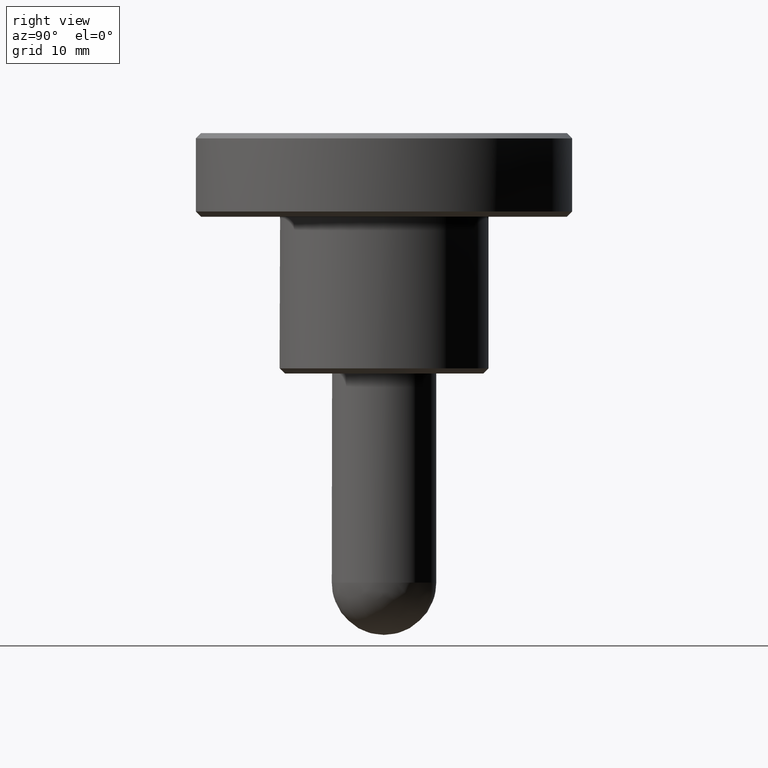
[diagram: clean part render]
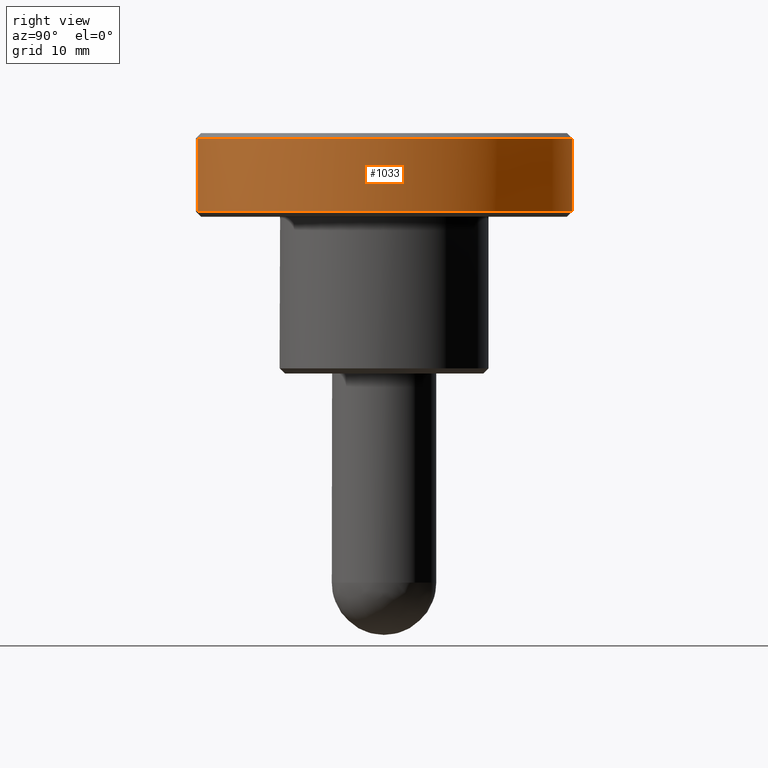
[diagram: same view with one face highlighted and labeled with its STEP entity id]
A machine part, right view. The second image highlights one B-rep face of the part: STEP entity #1033.
In plain terms, the highlighted face is a freeform B-spline surface patch.
Its self-contained STEP definition (entity closure, byte-faithful):
#150=CARTESIAN_POINT('',(2.234292461750493,-17.860793296917940,22.499999999999961));
#151=VERTEX_POINT('',#150);
#167=CARTESIAN_POINT('',(18.0,0.0,22.500000000000000));
#168=VERTEX_POINT('',#167);
#169=CARTESIAN_POINT('',(18.0,0.0,22.500000000000000));
#170=CARTESIAN_POINT('',(17.999999999999996,-15.888585180446192,22.499999999999996));
#171=CARTESIAN_POINT('',(2.234292461750493,-17.860793296917937,22.499999999999968));
#179=(BOUNDED_CURVE()B_SPLINE_CURVE(2,(#169,#170,#171),.UNSPECIFIED.,.F.,.U.)B_SPLINE_CURVE_WITH_KNOTS((3,3),(0.500000000000000,0.728526180329740),.UNSPECIFIED.)CURVE()GEOMETRIC_REPRESENTATION_ITEM()RATIONAL_B_SPLINE_CURVE((1.0,0.732264925840316,0.954005642384730))REPRESENTATION_ITEM(''));
#180=EDGE_CURVE('',#168,#151,#179,.T.);
#182=CARTESIAN_POINT('',(-0.157062411385727,17.999314748031320,22.500000000000011));
#183=VERTEX_POINT('',#182);
#184=CARTESIAN_POINT('',(-0.157062411385727,17.999314748031320,22.500000000000014));
#185=CARTESIAN_POINT('',(-0.078532700545314,17.999999999999996,22.500000000000004));
#186=CARTESIAN_POINT('',(0.0,18.0,22.500000000000000));
#187=CARTESIAN_POINT('',(18.000000000000007,18.000000000000007,22.500000000000004));
#188=CARTESIAN_POINT('',(18.0,0.0,22.500000000000000));
#196=(BOUNDED_CURVE()B_SPLINE_CURVE(2,(#184,#185,#186,#187,#188),.UNSPECIFIED.,.F.,.U.)B_SPLINE_CURVE_WITH_KNOTS((3,2,3),(0.248460254683442,0.250000000000000,0.500000000000000),.UNSPECIFIED.)CURVE()GEOMETRIC_REPRESENTATION_ITEM()RATIONAL_B_SPLINE_CURVE((0.996414372971010,0.998196076152321,1.0,0.707106781186547,1.0))REPRESENTATION_ITEM(''));
#197=EDGE_CURVE('',#183,#168,#196,.T.);
#361=CARTESIAN_POINT('',(-0.157061939083980,17.999314752152220,15.500000000000000));
#362=VERTEX_POINT('',#361);
#376=CARTESIAN_POINT('',(18.0,0.0,15.500000000000000));
#377=VERTEX_POINT('',#376);
#378=CARTESIAN_POINT('',(18.0,0.0,15.500000000000000));
#379=CARTESIAN_POINT('',(18.000000000000007,18.000000000000007,15.500000000000005));
#380=CARTESIAN_POINT('',(0.0,18.0,15.500000000000000));
#381=CARTESIAN_POINT('',(-0.078532464380953,18.000000000000004,15.500000000000002));
#382=CARTESIAN_POINT('',(-0.157061939083980,17.999314752152223,15.500000000000000));
#390=(BOUNDED_CURVE()B_SPLINE_CURVE(2,(#378,#379,#380,#381,#382),.UNSPECIFIED.,.F.,.U.)B_SPLINE_CURVE_WITH_KNOTS((3,2,3),(0.500000000000000,0.750000000000000,0.751539740694573),.UNSPECIFIED.)CURVE()GEOMETRIC_REPRESENTATION_ITEM()RATIONAL_B_SPLINE_CURVE((1.0,0.707106781186547,1.0,0.998196081567314,0.996414383667592))REPRESENTATION_ITEM(''));
#391=EDGE_CURVE('',#377,#362,#390,.T.);
#393=CARTESIAN_POINT('',(14.739590028794620,-10.331722304778610,15.500000000000020));
#394=VERTEX_POINT('',#393);
#395=CARTESIAN_POINT('',(14.739590028794618,-10.331722304778614,15.500000000000014));
#396=CARTESIAN_POINT('',(17.999999999999996,-5.680309415067988,15.500000000000005));
#397=CARTESIAN_POINT('',(18.0,0.0,15.500000000000000));
#405=(BOUNDED_CURVE()B_SPLINE_CURVE(2,(#395,#396,#397),.UNSPECIFIED.,.F.,.U.)B_SPLINE_CURVE_WITH_KNOTS((3,3),(0.401326273797115,0.500000000000000),.UNSPECIFIED.)CURVE()GEOMETRIC_REPRESENTATION_ITEM()RATIONAL_B_SPLINE_CURVE((0.860049271925866,0.884396538880479,1.0))REPRESENTATION_ITEM(''));
#406=EDGE_CURVE('',#394,#377,#405,.T.);
#444=CARTESIAN_POINT('',(2.234297702629476,-17.860792641313090,15.500000000000000));
#445=VERTEX_POINT('',#444);
#446=CARTESIAN_POINT('',(2.234297702629476,-17.860792641313093,15.500000000000000));
#447=CARTESIAN_POINT('',(10.156770514427961,-16.869730085579619,15.500000000000000));
#448=CARTESIAN_POINT('',(14.739590028794613,-10.331722304778614,15.500000000000021));
#456=(BOUNDED_CURVE()B_SPLINE_CURVE(2,(#446,#447,#448),.UNSPECIFIED.,.F.,.U.)B_SPLINE_CURVE_WITH_KNOTS((3,3),(0.271473869155912,0.401326273797116),.UNSPECIFIED.)CURVE()GEOMETRIC_REPRESENTATION_ITEM()RATIONAL_B_SPLINE_CURVE((0.954005546352132,0.828008816151475,0.860049271925866))REPRESENTATION_ITEM(''));
#457=EDGE_CURVE('',#445,#394,#456,.T.);
#998=CARTESIAN_POINT('',(2.234304037436927,-17.860791848859694,15.324999999999998));
#999=CARTESIAN_POINT('',(18.139190949044000,-15.871162646397979,15.324999999999994));
#1000=CARTESIAN_POINT('',(17.999314615155079,0.157077638970730,15.324999999999999));
#1001=CARTESIAN_POINT('',(17.842236976184342,18.156392254125802,15.324999999999998));
#1002=CARTESIAN_POINT('',(-0.157077638970730,17.999314615155079,15.324999999999999));
#1003=CARTESIAN_POINT('',(2.234304037436927,-17.860791848859694,22.679375000000004));
#1004=CARTESIAN_POINT('',(18.139190949044000,-15.871162646397979,22.679375000000007));
#1005=CARTESIAN_POINT('',(17.999314615155079,0.157077638970730,22.679375000000000));
#1006=CARTESIAN_POINT('',(17.842236976184342,18.156392254125802,22.679375000000000));
#1007=CARTESIAN_POINT('',(-0.157077638970730,17.999314615155079,22.679375000000000));
#1015=(BOUNDED_SURFACE()B_SPLINE_SURFACE(2,1,((#998,#1003),(#999,#1004),(#1000,#1005),(#1001,#1006),(#1002,#1007)),.UNSPECIFIED.,.F.,.F.,.U.)B_SPLINE_SURFACE_WITH_KNOTS((3,2,3),(2,2),(0.0,27.437506371593798,57.260882862456640),(0.0,7.354375000000009),.UNSPECIFIED.)GEOMETRIC_REPRESENTATION_ITEM()RATIONAL_B_SPLINE_SURFACE(((0.956886118190660,0.956886118190660),(0.730538238691624,0.730538238691624),(1.0,1.0),(0.707106781186548,0.707106781186548),(1.0,1.0)))REPRESENTATION_ITEM('')SURFACE());
#1016=ORIENTED_EDGE('',*,*,#180,.T.);
#1017=CARTESIAN_POINT('',(2.234297702629476,-17.860792641313090,15.500000000000000));
#1018=CARTESIAN_POINT('',(2.234292461750493,-17.860793296917940,22.499999999999961));
#1019=QUASI_UNIFORM_CURVE('',1,(#1017,#1018),.UNSPECIFIED.,.F.,.U.);
#1020=EDGE_CURVE('',#445,#151,#1019,.T.);
#1021=ORIENTED_EDGE('',*,*,#1020,.F.);
#1022=ORIENTED_EDGE('',*,*,#457,.T.);
#1023=ORIENTED_EDGE('',*,*,#406,.T.);
#1024=ORIENTED_EDGE('',*,*,#391,.T.);
#1025=CARTESIAN_POINT('',(-0.157061939083980,17.999314752152220,15.500000000000000));
#1026=CARTESIAN_POINT('',(-0.157062411385727,17.999314748031320,22.500000000000011));
#1027=QUASI_UNIFORM_CURVE('',1,(#1025,#1026),.UNSPECIFIED.,.F.,.U.);
#1028=EDGE_CURVE('',#362,#183,#1027,.T.);
#1029=ORIENTED_EDGE('',*,*,#1028,.T.);
#1030=ORIENTED_EDGE('',*,*,#197,.T.);
#1031=EDGE_LOOP('',(#1016,#1021,#1022,#1023,#1024,#1029,#1030));
#1032=FACE_OUTER_BOUND('',#1031,.T.);
#1033=ADVANCED_FACE('',(#1032),#1015,.T.);